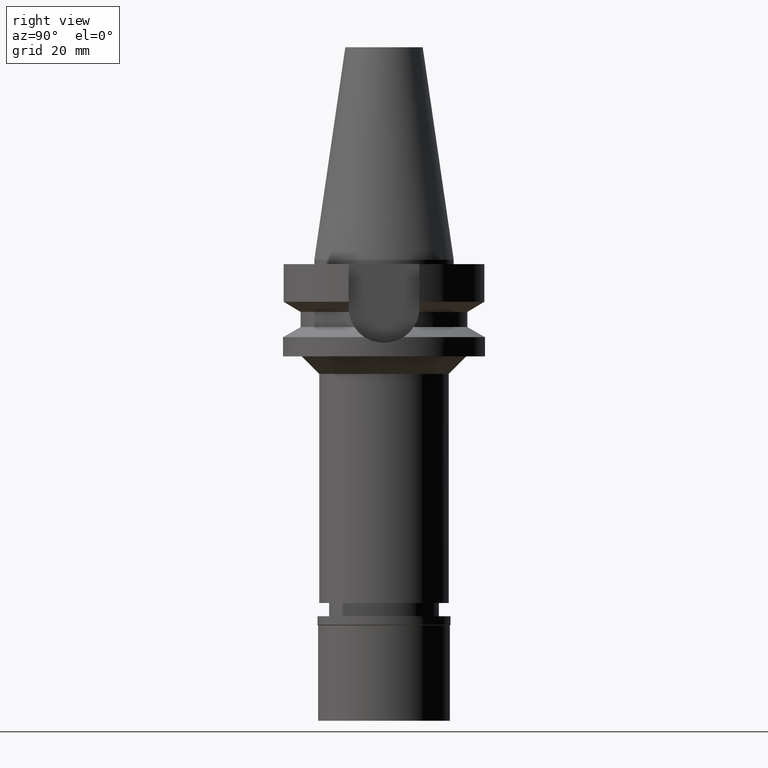
[diagram: clean part render]
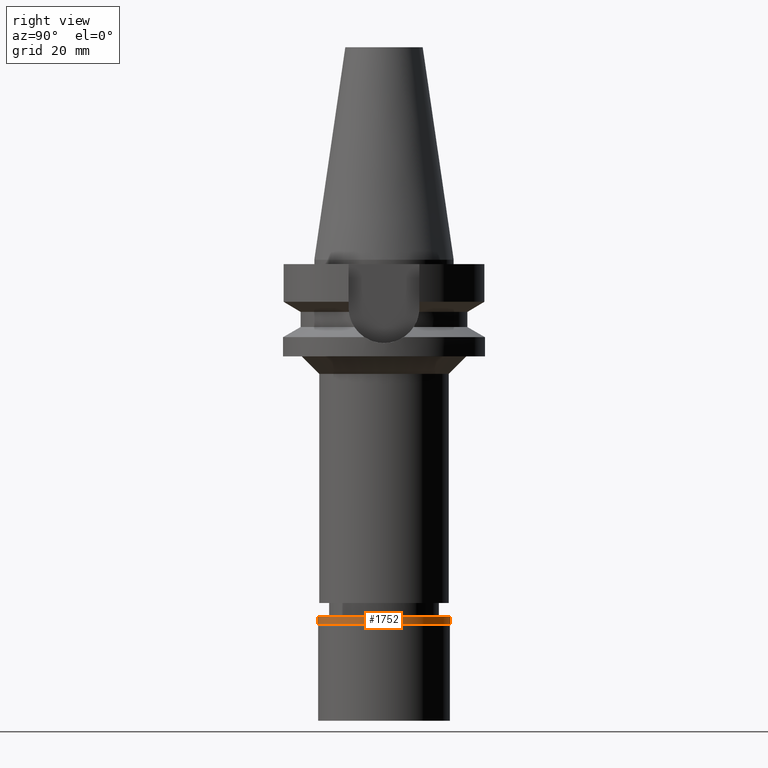
[diagram: same view with one face highlighted and labeled with its STEP entity id]
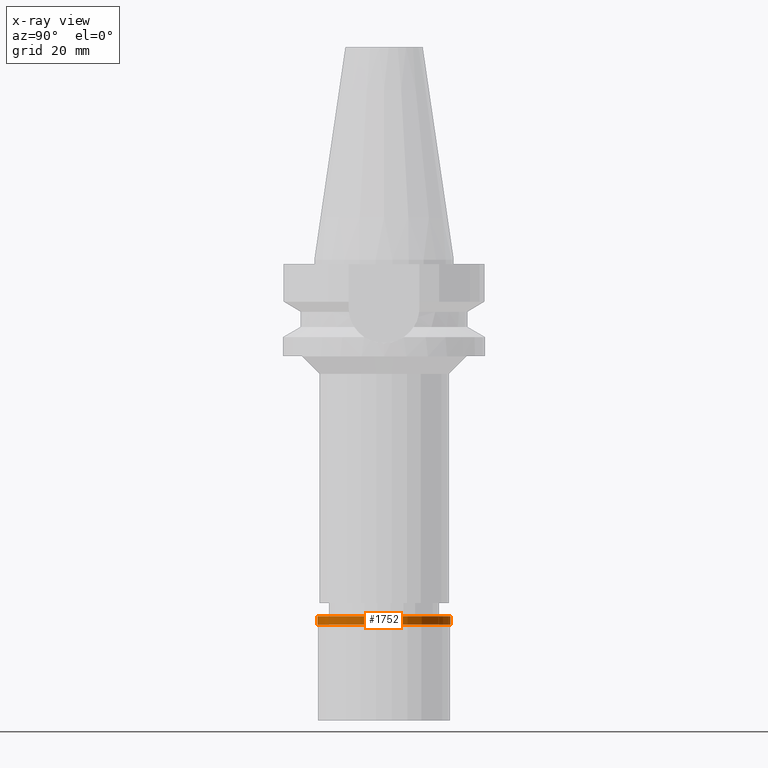
[diagram: x-ray of the same camera — body ghosted, the highlighted face saturated]
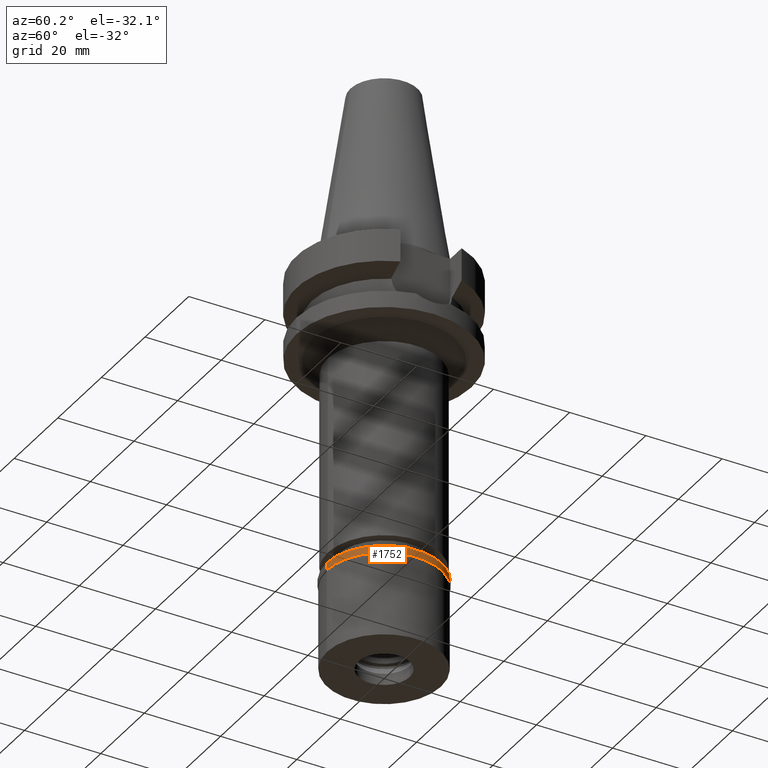
[diagram: same view with one face highlighted and labeled with its STEP entity id]
A machine part, right view. The second image highlights one B-rep face of the part: STEP entity #1752.
The next image is the same camera in x-ray: the body ghosted, the highlighted face saturated — about 0% of this face is hidden behind the body in this view.
A second angle (auxiliary view) of the same face is appended — the face is thin or edge-on in the first view.
In plain terms, the highlighted cylindrical surface (partial cylindrical patch) has radius 15.15 mm, axis along (0, 0, -1).
Its self-contained STEP definition (entity closure, byte-faithful):
#13 = EDGE_CURVE ( 'NONE', #755, #1737, #2279, .T. ) ;
#212 = CARTESIAN_POINT ( 'NONE',  ( 0.0000000000000000000, 0.0000000000000000000, 0.0000000000000000000 ) ) ;
#226 = EDGE_LOOP ( 'NONE', ( #1770, #2491, #1669, #2906 ) ) ;
#286 = VERTEX_POINT ( 'NONE', #691 ) ;
#347 = DIRECTION ( 'NONE',  ( 0.0000000000000000000, 0.0000000000000000000, -1.000000000000000000 ) ) ;
#389 = DIRECTION ( 'NONE',  ( 0.0000000000000000000, 0.0000000000000000000, -1.000000000000000000 ) ) ;
#637 = CARTESIAN_POINT ( 'NONE',  ( 0.0000000000000000000, -15.15000000000000036, 0.0000000000000000000 ) ) ;
#691 = CARTESIAN_POINT ( 'NONE',  ( 0.0000000000000000000, -15.15000000000000036, -1.949999999999999956 ) ) ;
#755 = VERTEX_POINT ( 'NONE', #865 ) ;
#865 = CARTESIAN_POINT ( 'NONE',  ( 0.0000000000000000000, 15.15000000000000036, 0.0000000000000000000 ) ) ;
#1071 = DIRECTION ( 'NONE',  ( 0.0000000000000000000, -1.000000000000000000, 0.0000000000000000000 ) ) ;
#1250 = DIRECTION ( 'NONE',  ( 0.0000000000000000000, 1.000000000000000000, 0.0000000000000000000 ) ) ;
#1290 = DIRECTION ( 'NONE',  ( 0.0000000000000000000, -1.000000000000000000, 0.0000000000000000000 ) ) ;
#1317 = DIRECTION ( 'NONE',  ( 0.0000000000000000000, 0.0000000000000000000, -1.000000000000000000 ) ) ;
#1473 = VECTOR ( 'NONE', #2668, 1000.000000000000000 ) ;
#1526 = CYLINDRICAL_SURFACE ( 'NONE', #1545, 15.15000000000000036 ) ;
#1545 = AXIS2_PLACEMENT_3D ( 'NONE', #2184, #389, #1290 ) ;
#1558 = CARTESIAN_POINT ( 'NONE',  ( 0.0000000000000000000, -15.15000000000000036, 0.0000000000000000000 ) ) ;
#1616 = VERTEX_POINT ( 'NONE', #2118 ) ;
#1669 = ORIENTED_EDGE ( 'NONE', *, *, #2206, .T. ) ;
#1737 = VERTEX_POINT ( 'NONE', #637 ) ;
#1752 = ADVANCED_FACE ( 'NONE', ( #2419 ), #1526, .T. ) ;
#1770 = ORIENTED_EDGE ( 'NONE', *, *, #13, .T. ) ;
#1921 = DIRECTION ( 'NONE',  ( 0.0000000000000000000, 0.0000000000000000000, 1.000000000000000000 ) ) ;
#1948 = CARTESIAN_POINT ( 'NONE',  ( 0.0000000000000000000, 0.0000000000000000000, -1.949999999999999956 ) ) ;
#1989 = VECTOR ( 'NONE', #347, 1000.000000000000000 ) ;
#2019 = LINE ( 'NONE', #1558, #1473 ) ;
#2118 = CARTESIAN_POINT ( 'NONE',  ( 0.0000000000000000000, 15.15000000000000036, -1.949999999999999956 ) ) ;
#2134 = EDGE_CURVE ( 'NONE', #755, #1616, #2375, .T. ) ;
#2169 = CARTESIAN_POINT ( 'NONE',  ( 0.0000000000000000000, 15.15000000000000036, 0.0000000000000000000 ) ) ;
#2184 = CARTESIAN_POINT ( 'NONE',  ( 0.0000000000000000000, 0.0000000000000000000, 0.0000000000000000000 ) ) ;
#2206 = EDGE_CURVE ( 'NONE', #286, #1616, #2324, .T. ) ;
#2279 = CIRCLE ( 'NONE', #2756, 15.15000000000000036 ) ;
#2324 = CIRCLE ( 'NONE', #2790, 15.15000000000000036 ) ;
#2375 = LINE ( 'NONE', #2169, #1989 ) ;
#2377 = EDGE_CURVE ( 'NONE', #1737, #286, #2019, .T. ) ;
#2419 = FACE_OUTER_BOUND ( 'NONE', #226, .T. ) ;
#2491 = ORIENTED_EDGE ( 'NONE', *, *, #2377, .T. ) ;
#2668 = DIRECTION ( 'NONE',  ( 0.0000000000000000000, 0.0000000000000000000, -1.000000000000000000 ) ) ;
#2756 = AXIS2_PLACEMENT_3D ( 'NONE', #212, #1317, #1250 ) ;
#2790 = AXIS2_PLACEMENT_3D ( 'NONE', #1948, #1921, #1071 ) ;
#2906 = ORIENTED_EDGE ( 'NONE', *, *, #2134, .F. ) ;